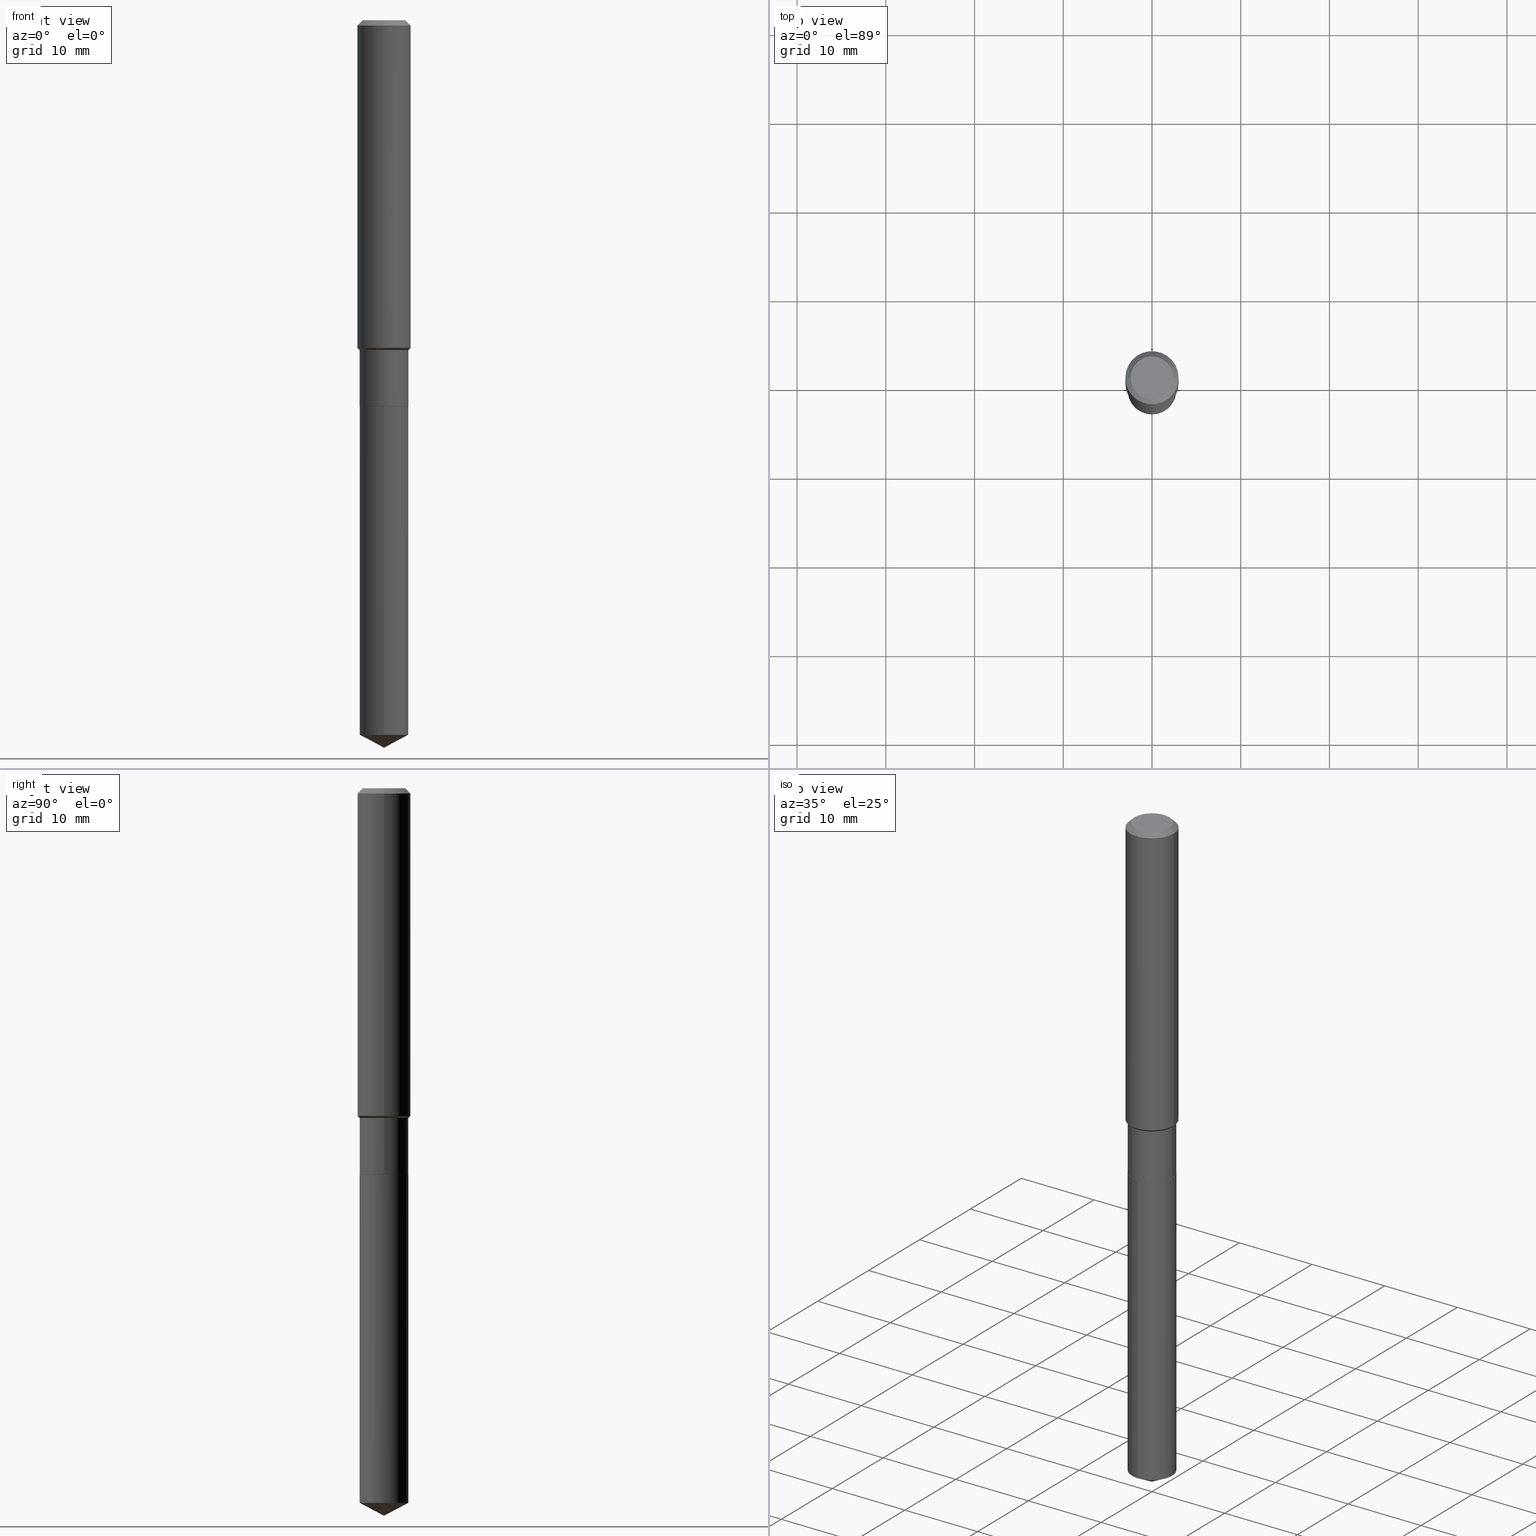
[diagram: canonical four-view strip — front | top / right | iso, engineering-drawing reading convention]
A machine part, canonical four-view strip (front | top / right | iso — engineering-drawing reading convention). The complete STEP part file that produces these views, byte-faithful:
ISO-10303-21;
HEADER;
FILE_DESCRIPTION (( 'STEP AP203' ),
    '1' );
FILE_NAME ('65185.STEP',
    '2024-04-24T21:05:43',
    ( '' ),
    ( '' ),
    'SwSTEP 2.0',
    'SolidWorks 2023',
    '' );
FILE_SCHEMA (( 'CONFIG_CONTROL_DESIGN' ));
ENDSEC;

DATA;
#1 = CARTESIAN_POINT ( 'NONE',  ( 3.578943597851947764E-29, -5.109782939396944472E-15, -1.463500000000000023 ) ) ;
#2 = ADVANCED_FACE ( 'NONE', ( #305 ), #296, .T. ) ;
#3 = DIRECTION ( 'NONE',  ( 1.000000000000000000, -6.982962677686267499E-15, 0.000000000000000000 ) ) ;
#4 = AXIS2_PLACEMENT_3D ( 'NONE', #48, #129, #350 ) ;
#5 = CARTESIAN_POINT ( 'NONE',  ( 7.691625114603860483E-16, 0.1082499999999940177, -1.712500000000000355 ) ) ;
#6 = CC_DESIGN_APPROVAL ( #107, ( #149 ) ) ;
#7 = EDGE_LOOP ( 'NONE', ( #320, #397, #379 ) ) ;
#8 = LINE ( 'NONE', #85, #433 ) ;
#9 = EDGE_LOOP ( 'NONE', ( #475, #174, #158, #326 ) ) ;
#10 = DIRECTION ( 'NONE',  ( -2.445468806185136597E-29, 3.491481338843145583E-15, 1.000000000000000000 ) ) ;
#11 = PERSON_AND_ORGANIZATION ( #216, #164 ) ;
#12 = DIRECTION ( 'NONE',  ( 2.445468806185136597E-29, -3.491481338843145583E-15, -1.000000000000000000 ) ) ;
#13 = VECTOR ( 'NONE', #316, 39.37007874015748854 ) ;
#14 = ORIENTED_EDGE ( 'NONE', *, *, #105, .T. ) ;
#15 = APPROVAL_ROLE ( '' ) ;
#16 = DIRECTION ( 'NONE',  ( -2.445468806185136597E-29, 3.491481338843145583E-15, 1.000000000000000000 ) ) ;
#17 = VERTEX_POINT ( 'NONE', #76 ) ;
#18 = FACE_OUTER_BOUND ( 'NONE', #283, .T. ) ;
#19 = VERTEX_POINT ( 'NONE', #117 ) ;
#20 = CIRCLE ( 'NONE', #474, 0.1082499999999999712 ) ;
#21 = ORIENTED_EDGE ( 'NONE', *, *, #154, .F. ) ;
#22 = DIRECTION ( 'NONE',  ( -2.445468806185136597E-29, 3.491481338843145583E-15, 1.000000000000000000 ) ) ;
#23 = ORIENTED_EDGE ( 'NONE', *, *, #67, .T. ) ;
#24 = CARTESIAN_POINT ( 'NONE',  ( 7.894604307068217338E-29, -1.127169619242225225E-14, -3.228299999999999947 ) ) ;
#25 = EDGE_CURVE ( 'NONE', #431, #127, #224, .T. ) ;
#26 = CARTESIAN_POINT ( 'NONE',  ( -0.1082499999999999851, 7.691625114603083455E-16, -5.324747235200934608E-30 ) ) ;
#27 = CYLINDRICAL_SURFACE ( 'NONE', #297, 0.1082499999999999851 ) ;
#28 = CARTESIAN_POINT ( 'NONE',  ( 0.1181000000000000799, -8.246878922347486570E-16, 5.758764772215004644E-30 ) ) ;
#29 = CC_DESIGN_SECURITY_CLASSIFICATION ( #459, ( #149 ) ) ;
#30 = EDGE_CURVE ( 'NONE', #354, #138, #151, .T. ) ;
#31 =( NAMED_UNIT ( * ) PLANE_ANGLE_UNIT ( ) SI_UNIT ( $, .RADIAN. ) );
#32 = APPROVAL ( #448, 'UNSPECIFIED' ) ;
#33 = CIRCLE ( 'NONE', #162, 0.1082499999999999990 ) ;
#34 = CARTESIAN_POINT ( 'NONE',  ( 0.000000000000000000, 0.000000000000000000, 0.000000000000000000 ) ) ;
#35 = AXIS2_PLACEMENT_3D ( 'NONE', #178, #55, #280 ) ;
#36 = DIRECTION ( 'NONE',  ( -2.445437012380576740E-29, 3.491526869380865605E-15, 1.000000000000000000 ) ) ;
#37 = ORIENTED_EDGE ( 'NONE', *, *, #179, .T. ) ;
#38 = CARTESIAN_POINT ( 'NONE',  ( 0.09447999999999998066, -7.704367267948738690E-16, -1.928573779296752193E-17 ) ) ;
#39 = ORIENTED_EDGE ( 'NONE', *, *, #239, .F. ) ;
#40 = DIRECTION ( 'NONE',  ( 1.000000000000000000, -6.982962677686266711E-15, 4.876176775795936353E-29 ) ) ;
#41 = AXIS2_PLACEMENT_3D ( 'NONE', #319, #125, #238 ) ;
#42 = CARTESIAN_POINT ( 'NONE',  ( 5.776197320209327532E-31, -8.246878922347559293E-17, -0.02362000000000014088 ) ) ;
#43 = AXIS2_PLACEMENT_3D ( 'NONE', #204, #444, #176 ) ;
#44 = ORIENTED_EDGE ( 'NONE', *, *, #114, .F. ) ;
#45 = EDGE_CURVE ( 'NONE', #235, #201, #421, .T. ) ;
#46 = PLANE ( 'NONE',  #60 ) ;
#47 = DATE_AND_TIME ( #123, #72 ) ;
#48 = CARTESIAN_POINT ( 'NONE',  ( 3.554855730111023835E-29, -5.075391848209338091E-15, -1.453649999999999887 ) ) ;
#49 = ORIENTED_EDGE ( 'NONE', *, *, #268, .F. ) ;
#50 = CYLINDRICAL_SURFACE ( 'NONE', #416, 0.1082499999999999851 ) ;
#51 = ADVANCED_FACE ( 'NONE', ( #217 ), #104, .T. ) ;
#52 = CONICAL_SURFACE ( 'NONE', #185, 0.1180999999999999966, 0.7853981633974460586 ) ;
#53 = CC_DESIGN_APPROVAL ( #32, ( #459 ) ) ;
#54 = ORIENTED_EDGE ( 'NONE', *, *, #335, .T. ) ;
#55 = DIRECTION ( 'NONE',  ( -2.445468806185136597E-29, 3.491481338843145583E-15, 1.000000000000000000 ) ) ;
#56 = ORIENTED_EDGE ( 'NONE', *, *, #348, .T. ) ;
#57 = CARTESIAN_POINT ( 'NONE',  ( -8.838238897756025826E-28, 1.261900695495238356E-13, 36.14177874015747705 ) ) ;
#58 = ORIENTED_EDGE ( 'NONE', *, *, #449, .F. ) ;
#59 = CYLINDRICAL_SURFACE ( 'NONE', #435, 0.1082499999999999990 ) ;
#60 = AXIS2_PLACEMENT_3D ( 'NONE', #424, #464, #196 ) ;
#61 = ORIENTED_EDGE ( 'NONE', *, *, #202, .F. ) ;
#62 = EDGE_CURVE ( 'NONE', #84, #394, #329, .T. ) ;
#63 = CARTESIAN_POINT ( 'NONE',  ( 7.753905400683704918E-29, -1.107065450306084433E-14, -3.170742454022644985 ) ) ;
#64 = CARTESIAN_POINT ( 'NONE',  ( 0.1082499999999999851, -7.559057098595382610E-16, 5.278461359799099291E-30 ) ) ;
#65 = DIRECTION ( 'NONE',  ( 1.000000000000000000, -6.982962677686269077E-15, 0.000000000000000000 ) ) ;
#66 = CARTESIAN_POINT ( 'NONE',  ( 7.691625114603859497E-16, 0.1082499999999889523, -3.170742454022645429 ) ) ;
#67 = EDGE_CURVE ( 'NONE', #227, #201, #20, .T. ) ;
#68 = AXIS2_PLACEMENT_3D ( 'NONE', #479, #408, #458 ) ;
#69 = DATE_AND_TIME ( #109, #73 ) ;
#70 = DIRECTION ( 'NONE',  ( -2.445437012380576740E-29, 3.491526869380865605E-15, 1.000000000000000000 ) ) ;
#71 = EDGE_CURVE ( 'NONE', #19, #77, #124, .T. ) ;
#72 = LOCAL_TIME ( 17, 5, 43.00000000000000000, #468 ) ;
#73 = LOCAL_TIME ( 17, 5, 43.00000000000000000, #152 ) ;
#74 = DIRECTION ( 'NONE',  ( 0.7071067811865459074, -7.319954787623249734E-15, -0.7071067811865491270 ) ) ;
#75 = PERSON_AND_ORGANIZATION ( #216, #164 ) ;
#76 = CARTESIAN_POINT ( 'NONE',  ( 0.1077499999999999986, -6.731576021289582030E-15, -1.712500000000000133 ) ) ;
#77 = VERTEX_POINT ( 'NONE', #38 ) ;
#78 = CALENDAR_DATE ( 2024, 24, 4 ) ;
#79 = FACE_OUTER_BOUND ( 'NONE', #298, .T. ) ;
#80 = APPLICATION_CONTEXT ( 'configuration controlled 3d designs of mechanical parts and assemblies' ) ;
#81 = CARTESIAN_POINT ( 'NONE',  ( 0.000000000000000000, 0.000000000000000000, 0.000000000000000000 ) ) ;
#82 = CONICAL_SURFACE ( 'NONE', #186, 0.1082499999999999712, 0.7853981633974500554 ) ;
#83 = CC_DESIGN_PERSON_AND_ORGANIZATION_ASSIGNMENT ( #262, #128, ( #149 ) ) ;
#84 = VERTEX_POINT ( 'NONE', #286 ) ;
#85 = CARTESIAN_POINT ( 'NONE',  ( -0.1181000000000000799, 8.391509709326788873E-16, -5.809262341591047988E-30 ) ) ;
#86 = EDGE_LOOP ( 'NONE', ( #402, #198, #169, #132 ) ) ;
#87 = EDGE_CURVE ( 'NONE', #138, #223, #153, .T. ) ;
#88 = DIRECTION ( 'NONE',  ( -2.445437012380576740E-29, 3.491526869380865999E-15, 1.000000000000000000 ) ) ;
#89 = ORIENTED_EDGE ( 'NONE', *, *, #410, .T. ) ;
#90 = CC_DESIGN_DATE_AND_TIME_ASSIGNMENT ( #225, #382, ( #459 ) ) ;
#91 = CARTESIAN_POINT ( 'NONE',  ( 4.187865330592046870E-29, -5.979161792768887170E-15, -1.712500000000000133 ) ) ;
#92 = VECTOR ( 'NONE', #484, 39.37007874015748143 ) ;
#93 = ORIENTED_EDGE ( 'NONE', *, *, #391, .F. ) ;
#94 = DIRECTION ( 'NONE',  ( -6.982962677686265922E-15, -1.000000000000000000, 2.523647107311097814E-15 ) ) ;
#95 = ORIENTED_EDGE ( 'NONE', *, *, #97, .F. ) ;
#96 = FACE_OUTER_BOUND ( 'NONE', #274, .T. ) ;
#97 = EDGE_CURVE ( 'NONE', #235, #127, #33, .T. ) ;
#98 = ORIENTED_EDGE ( 'NONE', *, *, #202, .T. ) ;
#99 = CARTESIAN_POINT ( 'NONE',  ( 4.186642596188954069E-29, -5.977416052099465667E-15, -1.712000000000000188 ) ) ;
#100 = VECTOR ( 'NONE', #442, 39.37007874015748143 ) ;
#101 = DIRECTION ( 'NONE',  ( -2.445468806185136597E-29, 3.491481338843145583E-15, 1.000000000000000000 ) ) ;
#102 = AXIS2_PLACEMENT_3D ( 'NONE', #57, #253, #211 ) ;
#103 = CARTESIAN_POINT ( 'NONE',  ( 4.187865330592046870E-29, -5.979161792768887170E-15, -1.712500000000000133 ) ) ;
#104 = CYLINDRICAL_SURFACE ( 'NONE', #228, 0.1181000000000000799 ) ;
#105 = EDGE_CURVE ( 'NONE', #223, #394, #426, .T. ) ;
#106 = DIRECTION ( 'NONE',  ( -2.445468806185136597E-29, 3.491481338843145583E-15, 1.000000000000000000 ) ) ;
#107 = APPROVAL ( #120, 'UNSPECIFIED' ) ;
#108 = CIRCLE ( 'NONE', #371, 0.1082499999999999990 ) ;
#109 = CALENDAR_DATE ( 2024, 24, 4 ) ;
#110 = DIRECTION ( 'NONE',  ( -2.445468806185136877E-29, 3.491481338843145188E-15, 1.000000000000000000 ) ) ;
#111 = ADVANCED_FACE ( 'NONE', ( #210 ), #365, .F. ) ;
#112 = MECHANICAL_CONTEXT ( 'NONE', #327, 'mechanical' ) ;
#113 = CARTESIAN_POINT ( 'NONE',  ( -0.1082499999999999990, -4.774436984287896921E-15, -1.712000000000000188 ) ) ;
#114 = EDGE_CURVE ( 'NONE', #127, #227, #222, .T. ) ;
#115 = AXIS2_PLACEMENT_3D ( 'NONE', #375, #445, #334 ) ;
#116 =( NAMED_UNIT ( * ) SI_UNIT ( $, .STERADIAN. ) SOLID_ANGLE_UNIT ( ) );
#117 = CARTESIAN_POINT ( 'NONE',  ( -0.09447999999999998066, 7.009847083995354710E-16, -1.928573779297727792E-17 ) ) ;
#118 = SECURITY_CLASSIFICATION_LEVEL ( 'unclassified' ) ;
#119 = FACE_OUTER_BOUND ( 'NONE', #86, .T. ) ;
#120 = APPROVAL_STATUS ( 'not_yet_approved' ) ;
#121 = DIRECTION ( 'NONE',  ( -6.982962677686265922E-15, -1.000000000000000000, 2.523647107311097814E-15 ) ) ;
#122 = ORIENTED_EDGE ( 'NONE', *, *, #410, .F. ) ;
#123 = CALENDAR_DATE ( 2024, 24, 4 ) ;
#124 = CIRCLE ( 'NONE', #306, 0.09447999999999998066 ) ;
#125 = DIRECTION ( 'NONE',  ( 2.445468806185136597E-29, -3.491481338843145583E-15, -1.000000000000000000 ) ) ;
#126 = AXIS2_PLACEMENT_3D ( 'NONE', #411, #139, #447 ) ;
#127 = VERTEX_POINT ( 'NONE', #113 ) ;
#128 = PERSON_AND_ORGANIZATION_ROLE ( 'design_supplier' ) ;
#129 = DIRECTION ( 'NONE',  ( -2.445468806185136597E-29, 3.491481338843145583E-15, 1.000000000000000000 ) ) ;
#130 = ORIENTED_EDGE ( 'NONE', *, *, #87, .T. ) ;
#131 = DIRECTION ( 'NONE',  ( 0.7071067811866199593, -2.468850131083015945E-15, 0.7071067811864750752 ) ) ;
#132 = ORIENTED_EDGE ( 'NONE', *, *, #105, .F. ) ;
#133 = FACE_OUTER_BOUND ( 'NONE', #460, .T. ) ;
#134 = CONICAL_SURFACE ( 'NONE', #41, 0.1180999999999999966, 0.7853981633974460586 ) ;
#135 = ORIENTED_EDGE ( 'NONE', *, *, #137, .T. ) ;
#136 = CARTESIAN_POINT ( 'NONE',  ( 3.578943597851947764E-29, -5.109782939396944472E-15, -1.463500000000000023 ) ) ;
#137 = EDGE_CURVE ( 'NONE', #201, #193, #344, .T. ) ;
#138 = VERTEX_POINT ( 'NONE', #66 ) ;
#139 = DIRECTION ( 'NONE',  ( -2.445468806185136597E-29, 3.491481338843145583E-15, 1.000000000000000000 ) ) ;
#140 = CC_DESIGN_PERSON_AND_ORGANIZATION_ASSIGNMENT ( #414, #301, ( #278 ) ) ;
#141 = DIRECTION ( 'NONE',  ( 1.000000000000000000, -6.982962677686267499E-15, 4.875432709231658792E-29 ) ) ;
#142 = LENGTH_MEASURE_WITH_UNIT ( LENGTH_MEASURE( 0.02539999999999999897 ), #206 );
#143 = CARTESIAN_POINT ( 'NONE',  ( -7.559057098594963527E-16, -0.1082500000000059803, -1.712499999999999911 ) ) ;
#144 = EDGE_CURVE ( 'NONE', #77, #281, #419, .T. ) ;
#145 = FACE_OUTER_BOUND ( 'NONE', #409, .T. ) ;
#146 = CARTESIAN_POINT ( 'NONE',  ( 7.753905400683704918E-29, -1.107065450306084433E-14, -3.170742454022644985 ) ) ;
#147 = DIRECTION ( 'NONE',  ( 1.000000000000000000, 0.000000000000000000, 0.000000000000000000 ) ) ;
#148 = CLOSED_SHELL ( 'NONE', ( #399, #184, #51, #487, #257, #361, #2, #437, #317, #294, #111, #480 ) ) ;
#149 = PRODUCT_DEFINITION_FORMATION_WITH_SPECIFIED_SOURCE ( 'ANY', '', #403, .NOT_KNOWN. ) ;
#150 = APPROVAL_DATE_TIME ( #69, #313 ) ;
#151 = LINE ( 'NONE', #263, #376 ) ;
#152 = COORDINATED_UNIVERSAL_TIME_OFFSET ( 5, 0, .BEHIND. ) ;
#153 = LINE ( 'NONE', #331, #370 ) ;
#154 = EDGE_CURVE ( 'NONE', #193, #281, #369, .T. ) ;
#155 = CLOSED_SHELL ( 'NONE', ( #456, #374, #191, #343, #285 ) ) ;
#156 = CIRCLE ( 'NONE', #43, 0.1082499999999999712 ) ;
#157 = CARTESIAN_POINT ( 'NONE',  ( -0.1082499999999999712, -4.774436984287896921E-15, -1.463500000000000023 ) ) ;
#158 = ORIENTED_EDGE ( 'NONE', *, *, #335, .F. ) ;
#159 = CARTESIAN_POINT ( 'NONE',  ( 4.187865330592046870E-29, -5.979161792768887170E-15, -1.712500000000000133 ) ) ;
#160 = ORIENTED_EDGE ( 'NONE', *, *, #45, .F. ) ;
#161 = DIRECTION ( 'NONE',  ( 1.000000000000000000, -6.982962677686266711E-15, 0.000000000000000000 ) ) ;
#162 = AXIS2_PLACEMENT_3D ( 'NONE', #481, #101, #3 ) ;
#163 = CARTESIAN_POINT ( 'NONE',  ( -8.838238897756025826E-28, 1.261900695495238356E-13, 36.14177874015747705 ) ) ;
#164 = ORGANIZATION ( 'UNSPECIFIED', 'UNSPECIFIED', '' ) ;
#165 = EDGE_CURVE ( 'NONE', #138, #84, #353, .T. ) ;
#166 = EDGE_LOOP ( 'NONE', ( #386, #243, #93, #160 ) ) ;
#167 = APPROVAL_DATE_TIME ( #47, #107 ) ;
#168 = DIRECTION ( 'NONE',  ( 1.000000000000000000, -6.982962677686263555E-15, 0.000000000000000000 ) ) ;
#169 = ORIENTED_EDGE ( 'NONE', *, *, #62, .T. ) ;
#170 = CARTESIAN_POINT ( 'NONE',  ( -0.1180999999999999966, 7.422191030112725094E-16, -0.02362000000000014088 ) ) ;
#171 = EDGE_LOOP ( 'NONE', ( #244, #14 ) ) ;
#172 = CYLINDRICAL_SURFACE ( 'NONE', #126, 0.1181000000000000799 ) ;
#173 = AXIS2_PLACEMENT_3D ( 'NONE', #163, #471, #396 ) ;
#174 = ORIENTED_EDGE ( 'NONE', *, *, #231, .T. ) ;
#175 = CC_DESIGN_DATE_AND_TIME_ASSIGNMENT ( #388, #308, ( #278 ) ) ;
#176 = DIRECTION ( 'NONE',  ( 1.000000000000000000, -6.982962677686269077E-15, 0.000000000000000000 ) ) ;
#177 = ORIENTED_EDGE ( 'NONE', *, *, #144, .T. ) ;
#178 = CARTESIAN_POINT ( 'NONE',  ( 4.716267017698007905E-46, -6.733579360998555036E-32, -1.928573779297252010E-17 ) ) ;
#179 = EDGE_CURVE ( 'NONE', #17, #235, #452, .T. ) ;
#180 = DIRECTION ( 'NONE',  ( -2.445468806185136597E-29, 3.491481338843145583E-15, 1.000000000000000000 ) ) ;
#181 = FACE_OUTER_BOUND ( 'NONE', #440, .T. ) ;
#182 = APPROVAL_PERSON_ORGANIZATION ( #461, #107, #15 ) ;
#183 = CARTESIAN_POINT ( 'NONE',  ( -0.1077499999999999986, -5.213551994987379920E-15, -1.712500000000000133 ) ) ;
#184 = ADVANCED_FACE ( 'NONE', ( #428 ), #52, .T. ) ;
#185 = AXIS2_PLACEMENT_3D ( 'NONE', #42, #12, #463 ) ;
#186 = AXIS2_PLACEMENT_3D ( 'NONE', #136, #282, #65 ) ;
#187 = PRODUCT_RELATED_PRODUCT_CATEGORY ( 'detail', '', ( #403 ) ) ;
#188 = DIRECTION ( 'NONE',  ( 6.273719981627755821E-15, 0.8829475928589283207, 0.4694715627858880858 ) ) ;
#189 = APPROVAL_STATUS ( 'not_yet_approved' ) ;
#190 = DIRECTION ( 'NONE',  ( -2.445437012380576740E-29, 3.491526869380865999E-15, 1.000000000000000000 ) ) ;
#191 = ADVANCED_FACE ( 'NONE', ( #79 ), #404, .T. ) ;
#192 = CARTESIAN_POINT ( 'NONE',  ( 5.776197320209327532E-31, -8.246878922347559293E-17, -0.02362000000000014088 ) ) ;
#193 = VERTEX_POINT ( 'NONE', #355 ) ;
#194 = VECTOR ( 'NONE', #252, 39.37007874015748143 ) ;
#195 = DIRECTION ( 'NONE',  ( 1.000000000000000000, -6.982962677686266711E-15, 0.000000000000000000 ) ) ;
#196 = DIRECTION ( 'NONE',  ( -1.000000000000000000, 6.982962677686265922E-15, -4.876176775795935793E-29 ) ) ;
#197 = DIRECTION ( 'NONE',  ( 1.000000000000000000, -6.982962677686266711E-15, 4.876176775795935232E-29 ) ) ;
#198 = ORIENTED_EDGE ( 'NONE', *, *, #165, .T. ) ;
#199 = AXIS2_PLACEMENT_3D ( 'NONE', #192, #10, #195 ) ;
#200 = CARTESIAN_POINT ( 'NONE',  ( 5.776197320209327532E-31, -8.246878922347559293E-17, -0.02362000000000014088 ) ) ;
#201 = VERTEX_POINT ( 'NONE', #346 ) ;
#202 = EDGE_CURVE ( 'NONE', #281, #434, #254, .T. ) ;
#203 = ORIENTED_EDGE ( 'NONE', *, *, #465, .F. ) ;
#204 = CARTESIAN_POINT ( 'NONE',  ( 3.578943597851947764E-29, -5.109782939396944472E-15, -1.463500000000000023 ) ) ;
#205 = ORIENTED_EDGE ( 'NONE', *, *, #62, .F. ) ;
#206 =( LENGTH_UNIT ( ) NAMED_UNIT ( * ) SI_UNIT ( $, .METRE. ) );
#207 = VECTOR ( 'NONE', #412, 39.37007874015748854 ) ;
#208 = ORIENTED_EDGE ( 'NONE', *, *, #368, .T. ) ;
#209 = FACE_OUTER_BOUND ( 'NONE', #7, .T. ) ;
#210 = FACE_OUTER_BOUND ( 'NONE', #438, .T. ) ;
#211 = DIRECTION ( 'NONE',  ( -6.982962677686267499E-15, -1.000000000000000000, 3.541896320645584535E-15 ) ) ;
#212 = CARTESIAN_POINT ( 'NONE',  ( 0.1180999999999999966, -8.926936027602933910E-16, -0.02362000000000014088 ) ) ;
#213 = CIRCLE ( 'NONE', #277, 0.1077499999999999986 ) ;
#214 = CIRCLE ( 'NONE', #289, 0.1082499999999999990 ) ;
#215 = PERSON_AND_ORGANIZATION_ROLE ( 'design_owner' ) ;
#216 = PERSON ( 'UNSPECIFIED', 'UNSPECIFIED', 'UNSPECIFIED', ('UNSPECIFIED'), ('UNSPECIFIED'), ('UNSPECIFIED') ) ;
#217 = FACE_OUTER_BOUND ( 'NONE', #240, .T. ) ;
#218 = AXIS2_PLACEMENT_3D ( 'NONE', #291, #455, #248 ) ;
#219 = VECTOR ( 'NONE', #74, 39.37007874015748143 ) ;
#220 = AXIS2_PLACEMENT_3D ( 'NONE', #91, #226, #321 ) ;
#221 = EDGE_CURVE ( 'NONE', #233, #434, #8, .T. ) ;
#222 = LINE ( 'NONE', #26, #194 ) ;
#223 = VERTEX_POINT ( 'NONE', #5 ) ;
#224 = LINE ( 'NONE', #183, #100 ) ;
#225 = DATE_AND_TIME ( #78, #490 ) ;
#226 = DIRECTION ( 'NONE',  ( -2.445437012380576740E-29, 3.491526869380865999E-15, 1.000000000000000000 ) ) ;
#227 = VERTEX_POINT ( 'NONE', #157 ) ;
#228 = AXIS2_PLACEMENT_3D ( 'NONE', #380, #180, #40 ) ;
#229 = PLANE ( 'NONE',  #393 ) ;
#230 = ORIENTED_EDGE ( 'NONE', *, *, #25, .F. ) ;
#231 = EDGE_CURVE ( 'NONE', #227, #233, #392, .T. ) ;
#232 = CARTESIAN_POINT ( 'NONE',  ( -0.1181000000000001632, -4.236240877276659105E-15, -1.453649999999999887 ) ) ;
#233 = VERTEX_POINT ( 'NONE', #232 ) ;
#234 = CYLINDRICAL_SURFACE ( 'NONE', #220, 0.1082499999999999990 ) ;
#235 = VERTEX_POINT ( 'NONE', #266 ) ;
#236 = CIRCLE ( 'NONE', #259, 0.1180999999999999966 ) ;
#237 = AXIS2_PLACEMENT_3D ( 'NONE', #103, #483, #251 ) ;
#238 = DIRECTION ( 'NONE',  ( -1.000000000000000000, 6.982962677686266711E-15, 0.000000000000000000 ) ) ;
#239 = EDGE_CURVE ( 'NONE', #17, #431, #213, .T. ) ;
#240 = EDGE_LOOP ( 'NONE', ( #54, #356, #61, #21 ) ) ;
#241 = FACE_OUTER_BOUND ( 'NONE', #9, .T. ) ;
#242 = CC_DESIGN_PERSON_AND_ORGANIZATION_ASSIGNMENT ( #417, #215, ( #403 ) ) ;
#243 = ORIENTED_EDGE ( 'NONE', *, *, #114, .T. ) ;
#244 = ORIENTED_EDGE ( 'NONE', *, *, #250, .T. ) ;
#245 = PERSON_AND_ORGANIZATION ( #216, #164 ) ;
#246 = LINE ( 'NONE', #24, #384 ) ;
#247 = VECTOR ( 'NONE', #441, 39.37007874015748143 ) ;
#248 = DIRECTION ( 'NONE',  ( -6.982962677686265922E-15, -1.000000000000000000, 2.523647107311097814E-15 ) ) ;
#249 = MANIFOLD_SOLID_BREP ( 'Body-Move/Copy2[2]', #148 ) ;
#250 = EDGE_CURVE ( 'NONE', #394, #223, #269, .T. ) ;
#251 = DIRECTION ( 'NONE',  ( 1.000000000000000000, -6.982962677686263555E-15, 0.000000000000000000 ) ) ;
#252 = DIRECTION ( 'NONE',  ( -2.445468806185136877E-29, 3.491481338843145188E-15, 1.000000000000000000 ) ) ;
#253 = DIRECTION ( 'NONE',  ( -2.445437012380576740E-29, 3.491526869380865999E-15, 1.000000000000000000 ) ) ;
#254 = CIRCLE ( 'NONE', #199, 0.1180999999999999966 ) ;
#255 = ADVANCED_BREP_SHAPE_REPRESENTATION ( '65185', ( #407, #249, #290 ), #466 ) ;
#256 = CARTESIAN_POINT ( 'NONE',  ( 4.716267017698007905E-46, -6.733579360998555036E-32, -1.928573779297252010E-17 ) ) ;
#257 = ADVANCED_FACE ( 'NONE', ( #267 ), #50, .T. ) ;
#258 = CARTESIAN_POINT ( 'NONE',  ( 0.1082499999999999712, -5.865688649256482338E-15, -1.463500000000000023 ) ) ;
#259 = AXIS2_PLACEMENT_3D ( 'NONE', #200, #16, #161 ) ;
#260 = CONICAL_SURFACE ( 'NONE', #237, 0.1077499999999999986, 0.7853981633975507526 ) ;
#261 = CC_DESIGN_PERSON_AND_ORGANIZATION_ASSIGNMENT ( #11, #315, ( #149 ) ) ;
#262 = PERSON_AND_ORGANIZATION ( #216, #164 ) ;
#263 = CARTESIAN_POINT ( 'NONE',  ( 7.894714155718750837E-29, -1.127154025033055884E-14, -3.228299999999999947 ) ) ;
#264 = ORIENTED_EDGE ( 'NONE', *, *, #303, .F. ) ;
#265 = PERSON_AND_ORGANIZATION_ROLE ( 'classification_officer' ) ;
#266 = CARTESIAN_POINT ( 'NONE',  ( 0.1082499999999999990, -6.733321761959004322E-15, -1.712000000000000188 ) ) ;
#267 = FACE_OUTER_BOUND ( 'NONE', #166, .T. ) ;
#268 = EDGE_CURVE ( 'NONE', #434, #281, #236, .T. ) ;
#269 = CIRCLE ( 'NONE', #287, 0.1082499999999999990 ) ;
#270 = CC_DESIGN_APPROVAL ( #313, ( #278 ) ) ;
#271 = CARTESIAN_POINT ( 'NONE',  ( 3.554855730111023835E-29, -5.075391848209338091E-15, -1.453649999999999887 ) ) ;
#272 = ORIENTED_EDGE ( 'NONE', *, *, #30, .F. ) ;
#273 = FACE_OUTER_BOUND ( 'NONE', #470, .T. ) ;
#274 = EDGE_LOOP ( 'NONE', ( #400, #358, #95, #446 ) ) ;
#275 = DIRECTION ( 'NONE',  ( -2.445468806185136597E-29, 3.491481338843145583E-15, 1.000000000000000000 ) ) ;
#276 = ORIENTED_EDGE ( 'NONE', *, *, #144, .F. ) ;
#277 = AXIS2_PLACEMENT_3D ( 'NONE', #159, #309, #168 ) ;
#278 = PRODUCT_DEFINITION ( 'UNKNOWN', '', #149, #485 ) ;
#279 = LOCAL_TIME ( 17, 5, 43.00000000000000000, #413 ) ;
#280 = DIRECTION ( 'NONE',  ( 1.000000000000000000, -6.982962677686267499E-15, 4.875432709231658792E-29 ) ) ;
#281 = VERTEX_POINT ( 'NONE', #425 ) ;
#282 = DIRECTION ( 'NONE',  ( -2.445468806185136597E-29, 3.491481338843145583E-15, 1.000000000000000000 ) ) ;
#283 = EDGE_LOOP ( 'NONE', ( #429, #390, #467, #49 ) ) ;
#284 = LINE ( 'NONE', #170, #247 ) ;
#285 = ADVANCED_FACE ( 'NONE', ( #469 ), #229, .F. ) ;
#286 = CARTESIAN_POINT ( 'NONE',  ( -7.559057098594608540E-16, -0.1082500000000110874, -3.170742454022644541 ) ) ;
#287 = AXIS2_PLACEMENT_3D ( 'NONE', #310, #88, #121 ) ;
#288 = DIRECTION ( 'NONE',  ( 1.000000000000000000, -6.982962677686266711E-15, 4.876176775795935232E-29 ) ) ;
#289 = AXIS2_PLACEMENT_3D ( 'NONE', #99, #22, #333 ) ;
#290 = AXIS2_PLACEMENT_3D ( 'NONE', #34, #488, #147 ) ;
#291 = CARTESIAN_POINT ( 'NONE',  ( 4.187865330592046870E-29, -5.979161792768887170E-15, -1.712500000000000133 ) ) ;
#292 = CARTESIAN_POINT ( 'NONE',  ( -0.1180999999999999966, -1.739779347783727196E-15, -0.02362000000000014088 ) ) ;
#293 = DATE_AND_TIME ( #338, #279 ) ;
#294 = ADVANCED_FACE ( 'NONE', ( #351 ), #46, .F. ) ;
#295 = APPLICATION_PROTOCOL_DEFINITION ( 'international standard', 'config_control_design', 1994, #327 ) ;
#296 = CONICAL_SURFACE ( 'NONE', #68, 0.1082499999999999712, 0.7853981633974500554 ) ;
#297 = AXIS2_PLACEMENT_3D ( 'NONE', #398, #106, #288 ) ;
#298 = EDGE_LOOP ( 'NONE', ( #272, #56, #318 ) ) ;
#299 = SHAPE_DEFINITION_REPRESENTATION ( #336, #255 ) ;
#300 = DIRECTION ( 'NONE',  ( -6.982962677686265922E-15, -1.000000000000000000, 5.047294214622195629E-15 ) ) ;
#301 = PERSON_AND_ORGANIZATION_ROLE ( 'creator' ) ;
#302 = ORIENTED_EDGE ( 'NONE', *, *, #449, .T. ) ;
#303 = EDGE_CURVE ( 'NONE', #233, #193, #482, .T. ) ;
#304 =( CONVERSION_BASED_UNIT ( 'INCH', #142 ) LENGTH_UNIT ( ) NAMED_UNIT ( #486 ) );
#305 = FACE_OUTER_BOUND ( 'NONE', #347, .T. ) ;
#306 = AXIS2_PLACEMENT_3D ( 'NONE', #256, #378, #141 ) ;
#307 = APPROVAL_PERSON_ORGANIZATION ( #245, #32, #372 ) ;
#308 = DATE_TIME_ROLE ( 'creation_date' ) ;
#309 = DIRECTION ( 'NONE',  ( -2.445468806185136597E-29, 3.491481338843145583E-15, 1.000000000000000000 ) ) ;
#310 = CARTESIAN_POINT ( 'NONE',  ( 4.187865330592046870E-29, -5.979161792768887170E-15, -1.712500000000000133 ) ) ;
#311 = CALENDAR_DATE ( 2024, 24, 4 ) ;
#312 = DIRECTION ( 'NONE',  ( -2.445468806185136877E-29, 3.491481338843145188E-15, 1.000000000000000000 ) ) ;
#313 = APPROVAL ( #189, 'UNSPECIFIED' ) ;
#314 = CONICAL_SURFACE ( 'NONE', #102, 74.04434902938304219, 1.082104136236483827 ) ;
#315 = PERSON_AND_ORGANIZATION_ROLE ( 'creator' ) ;
#316 = DIRECTION ( 'NONE',  ( -0.7071067811865486830, 7.493145998870357316E-15, 0.7071067811865462405 ) ) ;
#317 = ADVANCED_FACE ( 'NONE', ( #273 ), #134, .T. ) ;
#318 = ORIENTED_EDGE ( 'NONE', *, *, #165, .F. ) ;
#319 = CARTESIAN_POINT ( 'NONE',  ( 5.776197320209327532E-31, -8.246878922347559293E-17, -0.02362000000000014088 ) ) ;
#320 = ORIENTED_EDGE ( 'NONE', *, *, #348, .F. ) ;
#321 = DIRECTION ( 'NONE',  ( -6.982962677686265922E-15, -1.000000000000000000, 2.523647107311097814E-15 ) ) ;
#322 = ORIENTED_EDGE ( 'NONE', *, *, #71, .T. ) ;
#323 = AXIS2_PLACEMENT_3D ( 'NONE', #271, #275, #430 ) ;
#324 = APPROVAL_PERSON_ORGANIZATION ( #373, #313, #341 ) ;
#325 = DIRECTION ( 'NONE',  ( -2.445437012380576740E-29, 3.491526869380865999E-15, 1.000000000000000000 ) ) ;
#326 = ORIENTED_EDGE ( 'NONE', *, *, #137, .F. ) ;
#327 = APPLICATION_CONTEXT ( 'configuration controlled 3d designs of mechanical parts and assemblies' ) ;
#328 = DIRECTION ( 'NONE',  ( 1.000000000000000000, -6.982962677686263555E-15, 0.000000000000000000 ) ) ;
#329 = LINE ( 'NONE', #143, #339 ) ;
#330 = DIRECTION ( 'NONE',  ( -2.445468806185136597E-29, 3.491481338843145583E-15, 1.000000000000000000 ) ) ;
#331 = CARTESIAN_POINT ( 'NONE',  ( 7.691625114603501551E-16, 0.1082499999999940177, -1.712500000000000355 ) ) ;
#332 = CIRCLE ( 'NONE', #323, 0.1181000000000001632 ) ;
#333 = DIRECTION ( 'NONE',  ( 1.000000000000000000, -6.982962677686267499E-15, 0.000000000000000000 ) ) ;
#334 = DIRECTION ( 'NONE',  ( 1.000000000000000000, -6.982962677686265922E-15, 4.876176775795935793E-29 ) ) ;
#335 = EDGE_CURVE ( 'NONE', #193, #233, #332, .T. ) ;
#336 = PRODUCT_DEFINITION_SHAPE ( 'NONE', 'NONE',  #278 ) ;
#337 = CC_DESIGN_PERSON_AND_ORGANIZATION_ASSIGNMENT ( #75, #265, ( #459 ) ) ;
#338 = CALENDAR_DATE ( 2024, 24, 4 ) ;
#339 = VECTOR ( 'NONE', #36, 39.37007874015748143 ) ;
#340 = CIRCLE ( 'NONE', #35, 0.09447999999999998066 ) ;
#341 = APPROVAL_ROLE ( '' ) ;
#342 = DIRECTION ( 'NONE',  ( 1.000000000000000000, -6.982962677686269077E-15, 0.000000000000000000 ) ) ;
#343 = ADVANCED_FACE ( 'NONE', ( #119 ), #234, .T. ) ;
#344 = LINE ( 'NONE', #258, #207 ) ;
#345 = ORIENTED_EDGE ( 'NONE', *, *, #368, .F. ) ;
#346 = CARTESIAN_POINT ( 'NONE',  ( 0.1082499999999999712, -5.865688649256482338E-15, -1.463500000000000023 ) ) ;
#347 = EDGE_LOOP ( 'NONE', ( #472, #23, #135, #264 ) ) ;
#348 = EDGE_CURVE ( 'NONE', #354, #84, #246, .T. ) ;
#349 = CARTESIAN_POINT ( 'NONE',  ( 0.1077499999999999986, -6.731576021289582030E-15, -1.712500000000000133 ) ) ;
#350 = DIRECTION ( 'NONE',  ( 1.000000000000000000, -6.982962677686270655E-15, 0.000000000000000000 ) ) ;
#351 = FACE_OUTER_BOUND ( 'NONE', #450, .T. ) ;
#352 = EDGE_CURVE ( 'NONE', #84, #138, #108, .T. ) ;
#353 = CIRCLE ( 'NONE', #457, 0.1082499999999999990 ) ;
#354 = VERTEX_POINT ( 'NONE', #401 ) ;
#355 = CARTESIAN_POINT ( 'NONE',  ( 0.1181000000000001632, -5.900079740444087931E-15, -1.453649999999999887 ) ) ;
#356 = ORIENTED_EDGE ( 'NONE', *, *, #221, .T. ) ;
#357 = CARTESIAN_POINT ( 'NONE',  ( -7.559057098594963527E-16, -0.1082500000000059803, -1.712499999999999911 ) ) ;
#358 = ORIENTED_EDGE ( 'NONE', *, *, #25, .T. ) ;
#359 = DIRECTION ( 'NONE',  ( -6.165590087286824985E-15, -0.8829475928589249900, 0.4694715627858944140 ) ) ;
#360 = EDGE_LOOP ( 'NONE', ( #58, #177, #98, #122 ) ) ;
#361 = ADVANCED_FACE ( 'NONE', ( #133 ), #27, .T. ) ;
#362 = LOCAL_TIME ( 17, 5, 43.00000000000000000, #454 ) ;
#363 = ORIENTED_EDGE ( 'NONE', *, *, #67, .F. ) ;
#364 = CARTESIAN_POINT ( 'NONE',  ( 4.187865330592046870E-29, -5.979161792768887170E-15, -1.712500000000000133 ) ) ;
#365 = PLANE ( 'NONE',  #115 ) ;
#366 = ORIENTED_EDGE ( 'NONE', *, *, #465, .T. ) ;
#367 = CARTESIAN_POINT ( 'NONE',  ( 4.187865330592046870E-29, -5.979161792768887170E-15, -1.712500000000000133 ) ) ;
#368 = EDGE_CURVE ( 'NONE', #431, #17, #420, .T. ) ;
#369 = LINE ( 'NONE', #28, #92 ) ;
#370 = VECTOR ( 'NONE', #70, 39.37007874015748143 ) ;
#371 = AXIS2_PLACEMENT_3D ( 'NONE', #63, #473, #406 ) ;
#372 = APPROVAL_ROLE ( '' ) ;
#373 = PERSON_AND_ORGANIZATION ( #216, #164 ) ;
#374 = ADVANCED_FACE ( 'NONE', ( #209 ), #314, .T. ) ;
#375 = CARTESIAN_POINT ( 'NONE',  ( 4.187865330592046870E-29, -5.979161792768887170E-15, -1.712500000000000133 ) ) ;
#376 = VECTOR ( 'NONE', #188, 39.37007874015748143 ) ;
#377 = ORIENTED_EDGE ( 'NONE', *, *, #268, .T. ) ;
#378 = DIRECTION ( 'NONE',  ( -2.445468806185136597E-29, 3.491481338843145583E-15, 1.000000000000000000 ) ) ;
#379 = ORIENTED_EDGE ( 'NONE', *, *, #352, .F. ) ;
#380 = CARTESIAN_POINT ( 'NONE',  ( 0.000000000000000000, 0.000000000000000000, 0.000000000000000000 ) ) ;
#381 = ORIENTED_EDGE ( 'NONE', *, *, #352, .T. ) ;
#382 = DATE_TIME_ROLE ( 'classification_date' ) ;
#383 = CARTESIAN_POINT ( 'NONE',  ( -0.1082499999999999712, -4.340620427936635535E-15, -1.463500000000000023 ) ) ;
#384 = VECTOR ( 'NONE', #359, 39.37007874015748854 ) ;
#385 = AXIS2_PLACEMENT_3D ( 'NONE', #367, #478, #328 ) ;
#386 = ORIENTED_EDGE ( 'NONE', *, *, #97, .T. ) ;
#387 = DIRECTION ( 'NONE',  ( 6.982962677686265922E-15, 1.000000000000000000, -3.491526869380865605E-15 ) ) ;
#388 = DATE_AND_TIME ( #311, #362 ) ;
#389 = DIRECTION ( 'NONE',  ( 2.445437012380577020E-29, -3.491526869380865605E-15, -1.000000000000000000 ) ) ;
#390 = ORIENTED_EDGE ( 'NONE', *, *, #303, .T. ) ;
#391 = EDGE_CURVE ( 'NONE', #201, #227, #156, .T. ) ;
#392 = LINE ( 'NONE', #383, #13 ) ;
#393 = AXIS2_PLACEMENT_3D ( 'NONE', #432, #389, #387 ) ;
#394 = VERTEX_POINT ( 'NONE', #357 ) ;
#395 = AXIS2_PLACEMENT_3D ( 'NONE', #364, #330, #476 ) ;
#396 = DIRECTION ( 'NONE',  ( -6.982962677686267499E-15, -1.000000000000000000, 3.541896320645584535E-15 ) ) ;
#397 = ORIENTED_EDGE ( 'NONE', *, *, #30, .T. ) ;
#398 = CARTESIAN_POINT ( 'NONE',  ( 0.000000000000000000, 0.000000000000000000, 0.000000000000000000 ) ) ;
#399 = ADVANCED_FACE ( 'NONE', ( #96 ), #260, .T. ) ;
#400 = ORIENTED_EDGE ( 'NONE', *, *, #239, .T. ) ;
#401 = CARTESIAN_POINT ( 'NONE',  ( 7.894604307068217338E-29, -1.127169619242225068E-14, -3.228299999999999947 ) ) ;
#402 = ORIENTED_EDGE ( 'NONE', *, *, #87, .F. ) ;
#403 = PRODUCT ( '65185', '65185', '', ( #112 ) ) ;
#404 = CONICAL_SURFACE ( 'NONE', #173, 74.04434902938304219, 1.082104136236483827 ) ;
#405 = CONICAL_SURFACE ( 'NONE', #395, 0.1077499999999999986, 0.7853981633975507526 ) ;
#406 = DIRECTION ( 'NONE',  ( -6.982962677686265922E-15, -1.000000000000000000, 5.047294214622195629E-15 ) ) ;
#407 = MANIFOLD_SOLID_BREP ( 'Body-Move/Copy2[1]', #155 ) ;
#408 = DIRECTION ( 'NONE',  ( -2.445468806185136597E-29, 3.491481338843145583E-15, 1.000000000000000000 ) ) ;
#409 = EDGE_LOOP ( 'NONE', ( #230, #208, #37, #203 ) ) ;
#410 = EDGE_CURVE ( 'NONE', #19, #434, #284, .T. ) ;
#411 = CARTESIAN_POINT ( 'NONE',  ( 0.000000000000000000, 0.000000000000000000, 0.000000000000000000 ) ) ;
#412 = DIRECTION ( 'NONE',  ( 0.7071067811865486830, -2.468850131082269682E-15, 0.7071067811865462405 ) ) ;
#413 = COORDINATED_UNIVERSAL_TIME_OFFSET ( 5, 0, .BEHIND. ) ;
#414 = PERSON_AND_ORGANIZATION ( #216, #164 ) ;
#415 = UNCERTAINTY_MEASURE_WITH_UNIT (LENGTH_MEASURE( 1.000000000000000082E-05 ), #304, 'distance_accuracy_value', 'NONE');
#416 = AXIS2_PLACEMENT_3D ( 'NONE', #81, #462, #197 ) ;
#417 = PERSON_AND_ORGANIZATION ( #216, #164 ) ;
#418 = DIRECTION ( 'NONE',  ( -2.445468806185136597E-29, 3.491481338843145583E-15, 1.000000000000000000 ) ) ;
#419 = LINE ( 'NONE', #212, #219 ) ;
#420 = CIRCLE ( 'NONE', #385, 0.1077499999999999986 ) ;
#421 = LINE ( 'NONE', #64, #443 ) ;
#422 = ORIENTED_EDGE ( 'NONE', *, *, #71, .F. ) ;
#423 = COORDINATED_UNIVERSAL_TIME_OFFSET ( 5, 0, .BEHIND. ) ;
#424 = CARTESIAN_POINT ( 'NONE',  ( 2.358133508849003952E-46, -3.366789680499277518E-32, -9.642868896486260050E-18 ) ) ;
#425 = CARTESIAN_POINT ( 'NONE',  ( 0.1180999999999999966, -9.071566814582237199E-16, -0.02362000000000014088 ) ) ;
#426 = CIRCLE ( 'NONE', #218, 0.1082499999999999990 ) ;
#427 = ORIENTED_EDGE ( 'NONE', *, *, #45, .T. ) ;
#428 = FACE_OUTER_BOUND ( 'NONE', #360, .T. ) ;
#429 = ORIENTED_EDGE ( 'NONE', *, *, #221, .F. ) ;
#430 = DIRECTION ( 'NONE',  ( 1.000000000000000000, -6.982962677686270655E-15, 0.000000000000000000 ) ) ;
#431 = VERTEX_POINT ( 'NONE', #439 ) ;
#432 = CARTESIAN_POINT ( 'NONE',  ( 4.187865330592046870E-29, -5.979161792768887170E-15, -1.712500000000000133 ) ) ;
#433 = VECTOR ( 'NONE', #312, 39.37007874015748143 ) ;
#434 = VERTEX_POINT ( 'NONE', #292 ) ;
#435 = AXIS2_PLACEMENT_3D ( 'NONE', #436, #325, #94 ) ;
#436 = CARTESIAN_POINT ( 'NONE',  ( 4.187865330592046870E-29, -5.979161792768887170E-15, -1.712500000000000133 ) ) ;
#437 = ADVANCED_FACE ( 'NONE', ( #18 ), #172, .T. ) ;
#438 = EDGE_LOOP ( 'NONE', ( #39, #345 ) ) ;
#439 = CARTESIAN_POINT ( 'NONE',  ( -0.1077499999999999986, -5.210902767813268719E-15, -1.712500000000000133 ) ) ;
#440 = EDGE_LOOP ( 'NONE', ( #381, #130, #477, #205 ) ) ;
#441 = DIRECTION ( 'NONE',  ( -0.7071067811865459074, 2.468850131082240100E-15, -0.7071067811865491270 ) ) ;
#442 = DIRECTION ( 'NONE',  ( -0.7071067811866199593, 7.493145998870616062E-15, 0.7071067811864750752 ) ) ;
#443 = VECTOR ( 'NONE', #110, 39.37007874015748143 ) ;
#444 = DIRECTION ( 'NONE',  ( -2.445468806185136597E-29, 3.491481338843145583E-15, 1.000000000000000000 ) ) ;
#445 = DIRECTION ( 'NONE',  ( -2.438088387897960049E-29, 3.491481338843145188E-15, 1.000000000000000000 ) ) ;
#446 = ORIENTED_EDGE ( 'NONE', *, *, #179, .F. ) ;
#447 = DIRECTION ( 'NONE',  ( 1.000000000000000000, -6.982962677686266711E-15, 4.876176775795936353E-29 ) ) ;
#448 = APPROVAL_STATUS ( 'not_yet_approved' ) ;
#449 = EDGE_CURVE ( 'NONE', #77, #19, #340, .T. ) ;
#450 = EDGE_LOOP ( 'NONE', ( #322, #302 ) ) ;
#451 = APPLICATION_PROTOCOL_DEFINITION ( 'international standard', 'config_control_design', 1994, #80 ) ;
#452 = LINE ( 'NONE', #349, #489 ) ;
#453 = APPROVAL_DATE_TIME ( #293, #32 ) ;
#454 = COORDINATED_UNIVERSAL_TIME_OFFSET ( 5, 0, .BEHIND. ) ;
#455 = DIRECTION ( 'NONE',  ( -2.445437012380576740E-29, 3.491526869380865999E-15, 1.000000000000000000 ) ) ;
#456 = ADVANCED_FACE ( 'NONE', ( #181 ), #59, .T. ) ;
#457 = AXIS2_PLACEMENT_3D ( 'NONE', #146, #190, #300 ) ;
#458 = DIRECTION ( 'NONE',  ( 1.000000000000000000, -6.982962677686269077E-15, 0.000000000000000000 ) ) ;
#459 = SECURITY_CLASSIFICATION ( '', '', #118 ) ;
#460 = EDGE_LOOP ( 'NONE', ( #44, #366, #427, #363 ) ) ;
#461 = PERSON_AND_ORGANIZATION ( #216, #164 ) ;
#462 = DIRECTION ( 'NONE',  ( -2.445468806185136597E-29, 3.491481338843145583E-15, 1.000000000000000000 ) ) ;
#463 = DIRECTION ( 'NONE',  ( -1.000000000000000000, 6.982962677686266711E-15, 0.000000000000000000 ) ) ;
#464 = DIRECTION ( 'NONE',  ( 2.438088387897960049E-29, -3.491481338843145188E-15, -1.000000000000000000 ) ) ;
#465 = EDGE_CURVE ( 'NONE', #127, #235, #214, .T. ) ;
#466 =( GEOMETRIC_REPRESENTATION_CONTEXT ( 3 ) GLOBAL_UNCERTAINTY_ASSIGNED_CONTEXT ( ( #415 ) ) GLOBAL_UNIT_ASSIGNED_CONTEXT ( ( #304, #31, #116 ) ) REPRESENTATION_CONTEXT ( 'NONE', 'WORKASPACE' ) );
#467 = ORIENTED_EDGE ( 'NONE', *, *, #154, .T. ) ;
#468 = COORDINATED_UNIVERSAL_TIME_OFFSET ( 5, 0, .BEHIND. ) ;
#469 = FACE_OUTER_BOUND ( 'NONE', #171, .T. ) ;
#470 = EDGE_LOOP ( 'NONE', ( #276, #422, #89, #377 ) ) ;
#471 = DIRECTION ( 'NONE',  ( -2.445437012380576740E-29, 3.491526869380865999E-15, 1.000000000000000000 ) ) ;
#472 = ORIENTED_EDGE ( 'NONE', *, *, #231, .F. ) ;
#473 = DIRECTION ( 'NONE',  ( -2.445437012380576740E-29, 3.491526869380865999E-15, 1.000000000000000000 ) ) ;
#474 = AXIS2_PLACEMENT_3D ( 'NONE', #1, #418, #342 ) ;
#475 = ORIENTED_EDGE ( 'NONE', *, *, #391, .T. ) ;
#476 = DIRECTION ( 'NONE',  ( 1.000000000000000000, -6.982962677686263555E-15, 0.000000000000000000 ) ) ;
#477 = ORIENTED_EDGE ( 'NONE', *, *, #250, .F. ) ;
#478 = DIRECTION ( 'NONE',  ( -2.445468806185136597E-29, 3.491481338843145583E-15, 1.000000000000000000 ) ) ;
#479 = CARTESIAN_POINT ( 'NONE',  ( 3.578943597851947764E-29, -5.109782939396944472E-15, -1.463500000000000023 ) ) ;
#480 = ADVANCED_FACE ( 'NONE', ( #145 ), #405, .T. ) ;
#481 = CARTESIAN_POINT ( 'NONE',  ( 4.186642596188954069E-29, -5.977416052099465667E-15, -1.712000000000000188 ) ) ;
#482 = CIRCLE ( 'NONE', #4, 0.1181000000000001632 ) ;
#483 = DIRECTION ( 'NONE',  ( -2.445468806185136597E-29, 3.491481338843145583E-15, 1.000000000000000000 ) ) ;
#484 = DIRECTION ( 'NONE',  ( -2.445468806185136877E-29, 3.491481338843145188E-15, 1.000000000000000000 ) ) ;
#485 = DESIGN_CONTEXT ( 'detailed design', #80, 'design' ) ;
#486 = DIMENSIONAL_EXPONENTS ( 1.000000000000000000, 0.000000000000000000, 0.000000000000000000, 0.000000000000000000, 0.000000000000000000, 0.000000000000000000, 0.000000000000000000 ) ;
#487 = ADVANCED_FACE ( 'NONE', ( #241 ), #82, .T. ) ;
#488 = DIRECTION ( 'NONE',  ( 0.000000000000000000, 0.000000000000000000, 1.000000000000000000 ) ) ;
#489 = VECTOR ( 'NONE', #131, 39.37007874015748143 ) ;
#490 = LOCAL_TIME ( 17, 5, 43.00000000000000000, #423 ) ;
ENDSEC;
END-ISO-10303-21;
